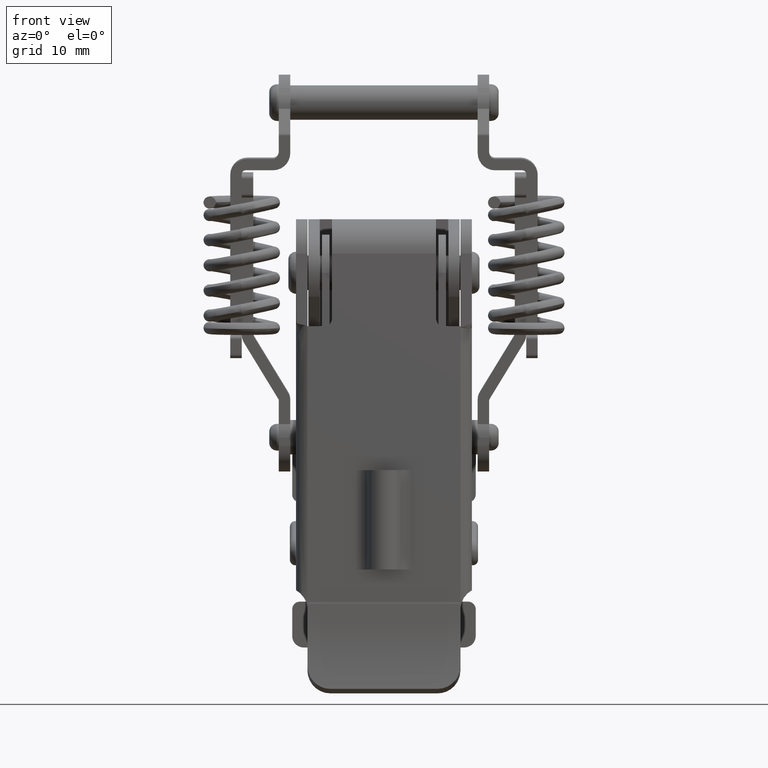
[diagram: clean part render]
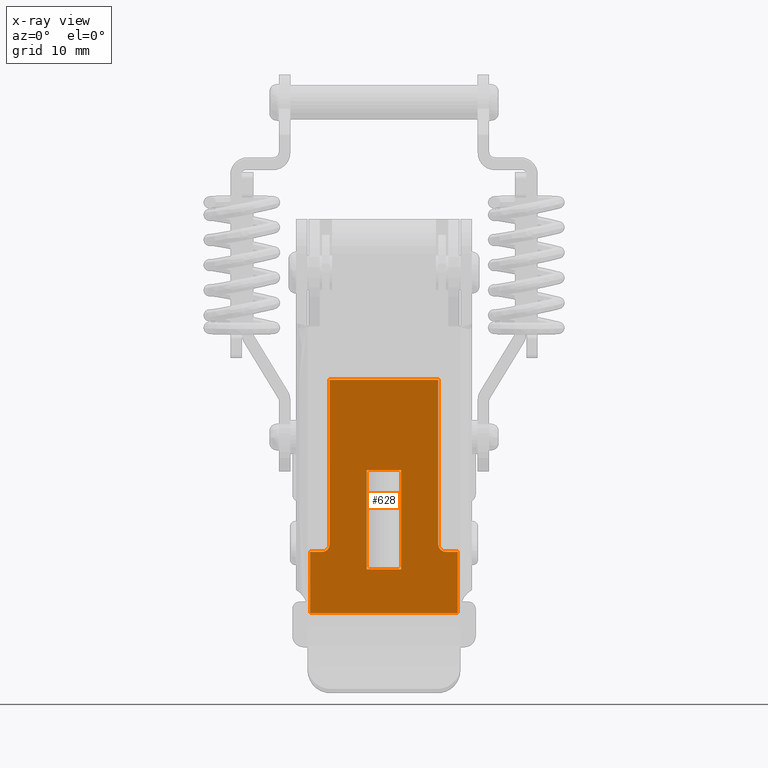
[diagram: x-ray — body ghosted, one internal face saturated and labeled with its STEP entity id]
A machine part, front view, then the same camera in x-ray: the body is ghosted and one INTERNAL B-rep face — a face not visible from any outside direction — is saturated and labeled: STEP entity #628.
In plain terms, the highlighted planar face has unit normal (0, 1, 0).
Its self-contained STEP definition (entity closure, byte-faithful):
#628=ADVANCED_FACE('',(#4314,#4315),#4313,.F.);
#4313=PLANE('',#7059);
#4314=FACE_OUTER_BOUND('',#7060,.T.);
#4315=FACE_BOUND('',#7061,.T.);
#7056=CARTESIAN_POINT('',(-1.15800000000E+01,0.00000000000E+00,-3.35500000000E+01));
#7057=DIRECTION('',(0.00000000000E+00,1.00000000000E+00,0.00000000000E+00));
#7058=DIRECTION('',(0.00000000000E+00,0.00000000000E+00,1.00000000000E+00));
#7059=AXIS2_PLACEMENT_3D('',#7056,#7057,#7058);
#7060=EDGE_LOOP('',(#11677,#11678,#11679,#11680,#11681,#11682,#11683,#11684,#11685,#11686));
#7061=EDGE_LOOP('',(#11687,#11688,#11689,#11690));
#11677=ORIENTED_EDGE('',*,*,#12862,.F.);
#11678=ORIENTED_EDGE('',*,*,#12759,.T.);
#11679=ORIENTED_EDGE('',*,*,#12872,.F.);
#11680=ORIENTED_EDGE('',*,*,#12916,.T.);
#11681=ORIENTED_EDGE('',*,*,#12836,.F.);
#11682=ORIENTED_EDGE('',*,*,#12842,.F.);
#11683=ORIENTED_EDGE('',*,*,#12845,.F.);
#11684=ORIENTED_EDGE('',*,*,#12917,.T.);
#11685=ORIENTED_EDGE('',*,*,#12852,.F.);
#11686=ORIENTED_EDGE('',*,*,#12860,.F.);
#11687=ORIENTED_EDGE('',*,*,#12913,.F.);
#11688=ORIENTED_EDGE('',*,*,#12915,.F.);
#11689=ORIENTED_EDGE('',*,*,#12918,.F.);
#11690=ORIENTED_EDGE('',*,*,#12910,.F.);
#12759=EDGE_CURVE('',#18690,#18682,#18691,.T.);
#12836=EDGE_CURVE('',#19210,#19211,#19212,.T.);
#12842=EDGE_CURVE('',#19244,#19210,#19251,.T.);
#12845=EDGE_CURVE('',#19265,#19244,#19272,.T.);
#12852=EDGE_CURVE('',#19318,#19319,#19320,.T.);
#12860=EDGE_CURVE('',#19366,#19318,#19373,.T.);
#12862=EDGE_CURVE('',#18690,#19366,#19385,.T.);
#12872=EDGE_CURVE('',#19190,#18682,#19450,.T.);
#12910=EDGE_CURVE('',#19690,#19697,#19698,.T.);
#12913=EDGE_CURVE('',#19710,#19690,#19717,.T.);
#12915=EDGE_CURVE('',#19723,#19710,#19730,.T.);
#12916=EDGE_CURVE('',#19190,#19211,#19736,.T.);
#12917=EDGE_CURVE('',#19265,#19319,#19742,.T.);
#12918=EDGE_CURVE('',#19697,#19723,#19748,.T.);
#18682=VERTEX_POINT('',#23885);
#18690=VERTEX_POINT('',#23903);
#18691=LINE('',#23904,#23905);
#19190=VERTEX_POINT('',#24217);
#19210=VERTEX_POINT('',#24238);
#19211=VERTEX_POINT('',#24239);
#19212=CIRCLE('',#24243,1.00000000000E+00);
#19244=VERTEX_POINT('',#24272);
#19251=LINE('',#24276,#24277);
#19265=VERTEX_POINT('',#24284);
#19272=LINE('',#24289,#24290);
#19318=VERTEX_POINT('',#24314);
#19319=VERTEX_POINT('',#24315);
#19320=LINE('',#24316,#24317);
#19366=VERTEX_POINT('',#24342);
#19373=LINE('',#24346,#24347);
#19385=CIRCLE('',#24356,1.00000000000E+00);
#19450=LINE('',#24389,#24390);
#19690=VERTEX_POINT('',#24526);
#19697=VERTEX_POINT('',#24530);
#19698=LINE('',#24531,#24532);
#19710=VERTEX_POINT('',#24537);
#19717=LINE('',#24541,#24542);
#19723=VERTEX_POINT('',#24544);
#19730=LINE('',#24548,#24549);
#19736=LINE('',#24551,#24552);
#19742=LINE('',#24554,#24555);
#19748=LINE('',#24557,#24558);
#23885=CARTESIAN_POINT('',(7.10000000000E+00,0.00000000000E+00,0.00000000000E+00));
#23903=CARTESIAN_POINT('',(7.10000000000E+00,0.00000000000E+00,-2.15000000000E+01));
#23904=CARTESIAN_POINT('',(7.10000000000E+00,0.00000000000E+00,-2.15000000000E+01));
#23905=VECTOR('',#23906,2.15000000000E+01);
#23906=DIRECTION('',(0.00000000000E+00,0.00000000000E+00,1.00000000000E+00));
#24217=CARTESIAN_POINT('',(-7.10000000000E+00,0.00000000000E+00,0.00000000000E+00));
#24238=CARTESIAN_POINT('',(-8.10000000000E+00,0.00000000000E+00,-2.25000000000E+01));
#24239=CARTESIAN_POINT('',(-7.10000000000E+00,0.00000000000E+00,-2.15000000000E+01));
#24240=CARTESIAN_POINT('',(-8.10000000000E+00,0.00000000000E+00,-2.15000000000E+01));
#24241=DIRECTION('',(0.00000000000E+00,-1.00000000000E+00,0.00000000000E+00));
#24242=DIRECTION('',(-0.00000000000E+00,-0.00000000000E+00,-1.00000000000E+00));
#24243=AXIS2_PLACEMENT_3D('',#24240,#24241,#24242);
#24272=CARTESIAN_POINT('',(-9.65000000000E+00,0.00000000000E+00,-2.25000000000E+01));
#24276=CARTESIAN_POINT('',(-9.65000000000E+00,0.00000000000E+00,-2.25000000000E+01));
#24277=VECTOR('',#24278,1.55000000000E+00);
#24278=DIRECTION('',(1.00000000000E+00,0.00000000000E+00,0.00000000000E+00));
#24284=CARTESIAN_POINT('',(-9.65000000000E+00,0.00000000000E+00,-3.05000000000E+01));
#24289=CARTESIAN_POINT('',(-9.65000000000E+00,0.00000000000E+00,-3.05000000000E+01));
#24290=VECTOR('',#24291,8.00000000000E+00);
#24291=DIRECTION('',(0.00000000000E+00,0.00000000000E+00,1.00000000000E+00));
#24314=CARTESIAN_POINT('',(9.65000000000E+00,0.00000000000E+00,-2.25000000000E+01));
#24315=CARTESIAN_POINT('',(9.65000000000E+00,0.00000000000E+00,-3.05000000000E+01));
#24316=CARTESIAN_POINT('',(9.65000000000E+00,0.00000000000E+00,-2.25000000000E+01));
#24317=VECTOR('',#24318,8.00000000000E+00);
#24318=DIRECTION('',(0.00000000000E+00,0.00000000000E+00,-1.00000000000E+00));
#24342=CARTESIAN_POINT('',(8.10000000000E+00,0.00000000000E+00,-2.25000000000E+01));
#24346=CARTESIAN_POINT('',(8.10000000000E+00,0.00000000000E+00,-2.25000000000E+01));
#24347=VECTOR('',#24348,1.55000000000E+00);
#24348=DIRECTION('',(1.00000000000E+00,0.00000000000E+00,0.00000000000E+00));
#24353=CARTESIAN_POINT('',(8.10000000000E+00,0.00000000000E+00,-2.15000000000E+01));
#24354=DIRECTION('',(0.00000000000E+00,-1.00000000000E+00,0.00000000000E+00));
#24355=DIRECTION('',(-0.00000000000E+00,-0.00000000000E+00,-1.00000000000E+00));
#24356=AXIS2_PLACEMENT_3D('',#24353,#24354,#24355);
#24389=CARTESIAN_POINT('',(-7.10000000000E+00,0.00000000000E+00,0.00000000000E+00));
#24390=VECTOR('',#24391,1.42000000000E+01);
#24391=DIRECTION('',(1.00000000000E+00,0.00000000000E+00,0.00000000000E+00));
#24526=CARTESIAN_POINT('',(2.25000000000E+00,0.00000000000E+00,-1.18000000000E+01));
#24530=CARTESIAN_POINT('',(-2.25000000000E+00,0.00000000000E+00,-1.18000000000E+01));
#24531=CARTESIAN_POINT('',(2.25000000000E+00,0.00000000000E+00,-1.18000000000E+01));
#24532=VECTOR('',#24533,4.50000000000E+00);
#24533=DIRECTION('',(-1.00000000000E+00,0.00000000000E+00,0.00000000000E+00));
#24537=CARTESIAN_POINT('',(2.25000000000E+00,0.00000000000E+00,-2.48000000000E+01));
#24541=CARTESIAN_POINT('',(2.25000000000E+00,0.00000000000E+00,-2.48000000000E+01));
#24542=VECTOR('',#24543,1.30000000000E+01);
#24543=DIRECTION('',(0.00000000000E+00,0.00000000000E+00,1.00000000000E+00));
#24544=CARTESIAN_POINT('',(-2.25000000000E+00,0.00000000000E+00,-2.48000000000E+01));
#24548=CARTESIAN_POINT('',(-2.25000000000E+00,0.00000000000E+00,-2.48000000000E+01));
#24549=VECTOR('',#24550,4.50000000000E+00);
#24550=DIRECTION('',(1.00000000000E+00,0.00000000000E+00,0.00000000000E+00));
#24551=CARTESIAN_POINT('',(-7.10000000000E+00,0.00000000000E+00,0.00000000000E+00));
#24552=VECTOR('',#24553,2.15000000000E+01);
#24553=DIRECTION('',(0.00000000000E+00,0.00000000000E+00,-1.00000000000E+00));
#24554=CARTESIAN_POINT('',(-9.65000000000E+00,0.00000000000E+00,-3.05000000000E+01));
#24555=VECTOR('',#24556,1.93000000000E+01);
#24556=DIRECTION('',(1.00000000000E+00,0.00000000000E+00,0.00000000000E+00));
#24557=CARTESIAN_POINT('',(-2.25000000000E+00,0.00000000000E+00,-1.18000000000E+01));
#24558=VECTOR('',#24559,1.30000000000E+01);
#24559=DIRECTION('',(0.00000000000E+00,0.00000000000E+00,-1.00000000000E+00));